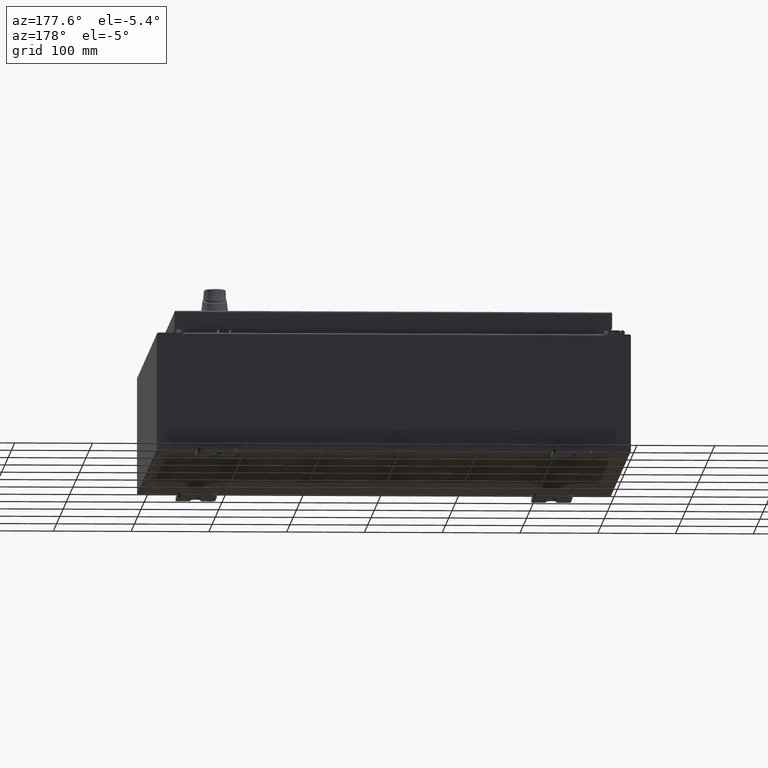
[diagram: clean part render]
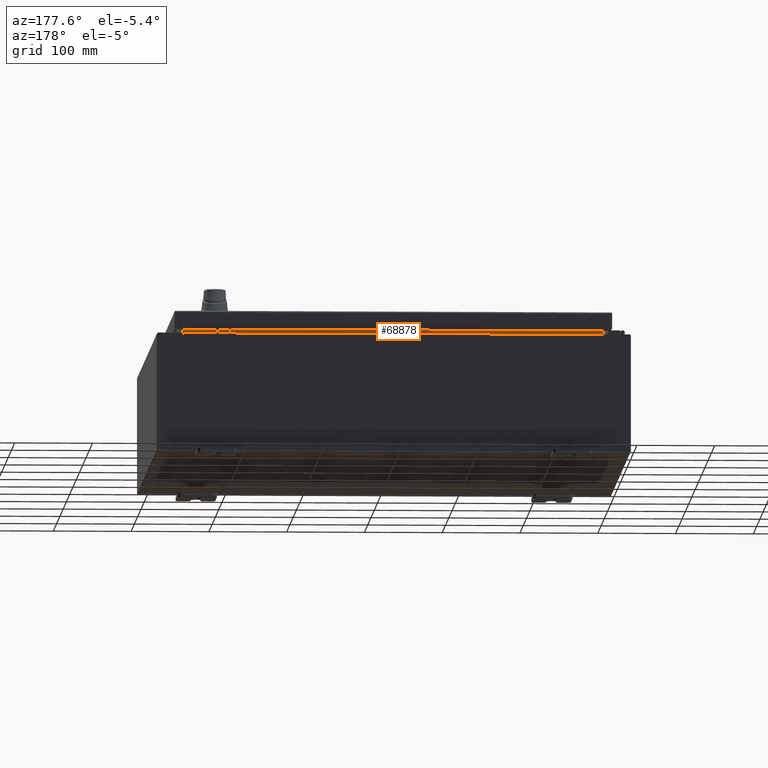
[diagram: same view with one face highlighted and labeled with its STEP entity id]
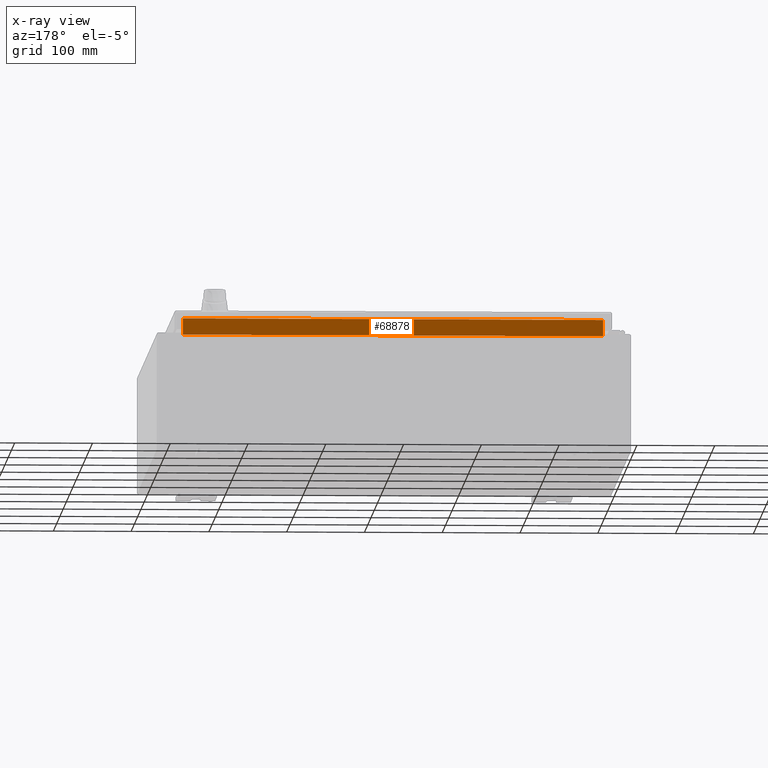
[diagram: x-ray of the same camera — body ghosted, the highlighted face saturated]
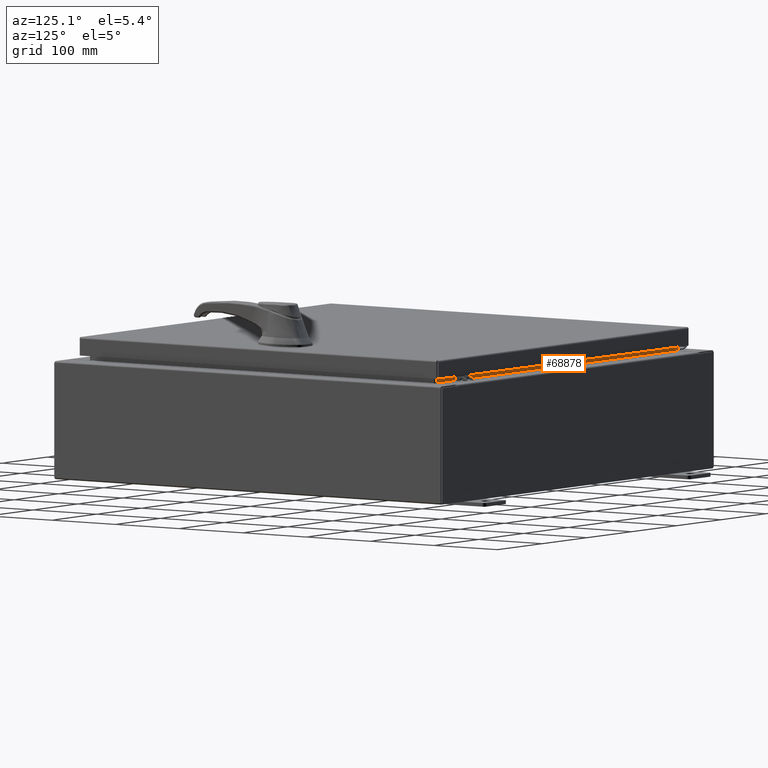
[diagram: same view with one face highlighted and labeled with its STEP entity id]
A machine part, auxiliary view. The second image highlights one B-rep face of the part: STEP entity #68878.
The next image is the same camera in x-ray: the body ghosted, the highlighted face saturated — about 0% of this face is hidden behind the body in this view.
A second angle (auxiliary view) of the same face is appended — the face is thin or edge-on in the first view.
In plain terms, the highlighted planar face has unit normal (0, 1, 0).
Its self-contained STEP definition (entity closure, byte-faithful):
#940 = VECTOR ( 'NONE', #33084, 39.37007874015748100 ) ;
#1768 = ORIENTED_EDGE ( 'NONE', *, *, #89843, .F. ) ;
#3627 = LINE ( 'NONE', #85016, #940 ) ;
#10700 = VECTOR ( 'NONE', #14078, 39.37007874015748100 ) ;
#14078 = DIRECTION ( 'NONE',  ( -1.000000000000000000, -0.0000000000000000000, -0.0000000000000000000 ) ) ;
#18007 = VERTEX_POINT ( 'NONE', #105292 ) ;
#19771 = FACE_OUTER_BOUND ( 'NONE', #89593, .T. ) ;
#21042 = VERTEX_POINT ( 'NONE', #35447 ) ;
#21674 = LINE ( 'NONE', #74129, #62413 ) ;
#22193 = DIRECTION ( 'NONE',  ( -0.0000000000000000000, -0.0000000000000000000, 1.000000000000000000 ) ) ;
#30041 = PLANE ( 'NONE',  #35881 ) ;
#30758 = CARTESIAN_POINT ( 'NONE',  ( -10.63720000000000200, -1.300299999999999800, 3.000000000000005300 ) ) ;
#33084 = DIRECTION ( 'NONE',  ( 1.000000000000000000, 0.0000000000000000000, -5.136404305013091600E-017 ) ) ;
#33790 = LINE ( 'NONE', #39927, #10700 ) ;
#35447 = CARTESIAN_POINT ( 'NONE',  ( 10.63720000000000200, -1.300299999999999800, 3.837600000000005000 ) ) ;
#35881 = AXIS2_PLACEMENT_3D ( 'NONE', #47138, #38814, #99358 ) ;
#38814 = DIRECTION ( 'NONE',  ( 0.0000000000000000000, 1.000000000000000000, 0.0000000000000000000 ) ) ;
#39516 = DIRECTION ( 'NONE',  ( -0.0000000000000000000, -0.0000000000000000000, -1.000000000000000000 ) ) ;
#39927 = CARTESIAN_POINT ( 'NONE',  ( 10.63720000000000200, -1.300300000000000200, 3.837600000000005000 ) ) ;
#47138 = CARTESIAN_POINT ( 'NONE',  ( 0.0000000000000000000, -1.300299999999999800, 0.0000000000000000000 ) ) ;
#55197 = ORIENTED_EDGE ( 'NONE', *, *, #109153, .F. ) ;
#57652 = VECTOR ( 'NONE', #39516, 39.37007874015748100 ) ;
#62413 = VECTOR ( 'NONE', #22193, 39.37007874015748100 ) ;
#68878 = ADVANCED_FACE ( 'NONE', ( #19771 ), #30041, .T. ) ;
#70473 = VERTEX_POINT ( 'NONE', #82551 ) ;
#74129 = CARTESIAN_POINT ( 'NONE',  ( 10.63720000000000200, -1.300299999999999800, 3.925300000000005300 ) ) ;
#79135 = VERTEX_POINT ( 'NONE', #94496 ) ;
#82551 = CARTESIAN_POINT ( 'NONE',  ( 10.63720000000000400, -1.300299999999999800, 3.013000000000004800 ) ) ;
#83423 = LINE ( 'NONE', #30758, #57652 ) ;
#85016 = CARTESIAN_POINT ( 'NONE',  ( -10.63720000000000200, -1.300299999999999800, 3.013000000000005200 ) ) ;
#89009 = EDGE_CURVE ( 'NONE', #70473, #21042, #21674, .T. ) ;
#89593 = EDGE_LOOP ( 'NONE', ( #55197, #1768, #90063, #107884 ) ) ;
#89843 = EDGE_CURVE ( 'NONE', #21042, #18007, #33790, .T. ) ;
#90063 = ORIENTED_EDGE ( 'NONE', *, *, #89009, .F. ) ;
#92307 = EDGE_CURVE ( 'NONE', #79135, #70473, #3627, .T. ) ;
#94496 = CARTESIAN_POINT ( 'NONE',  ( -10.63720000000000400, -1.300299999999999800, 3.013000000000004800 ) ) ;
#99358 = DIRECTION ( 'NONE',  ( 0.0000000000000000000, -0.0000000000000000000, 1.000000000000000000 ) ) ;
#105292 = CARTESIAN_POINT ( 'NONE',  ( -10.63720000000000200, -1.300300000000000200, 3.837600000000005000 ) ) ;
#107884 = ORIENTED_EDGE ( 'NONE', *, *, #92307, .F. ) ;
#109153 = EDGE_CURVE ( 'NONE', #18007, #79135, #83423, .T. ) ;